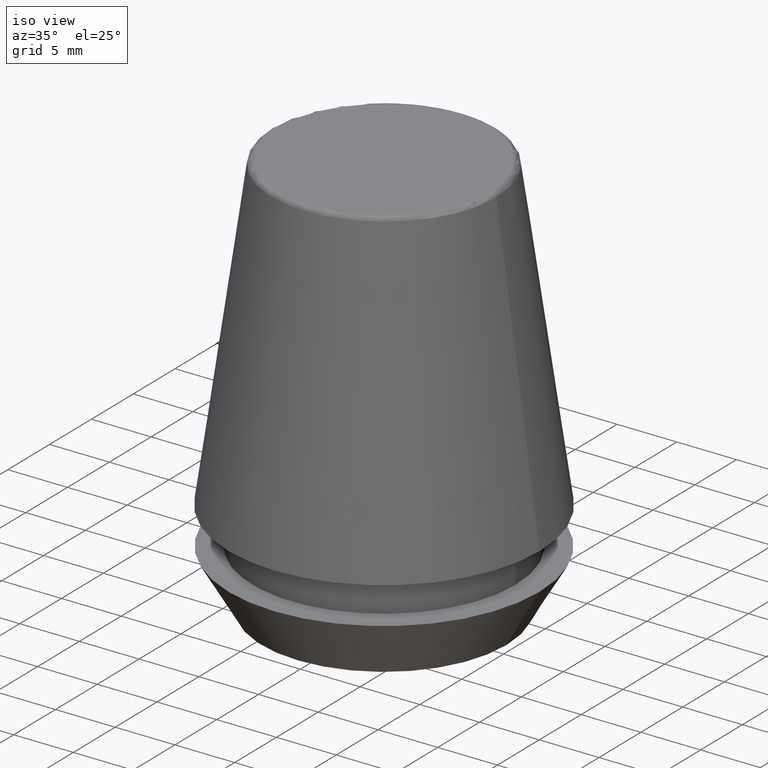
[diagram: clean part render]
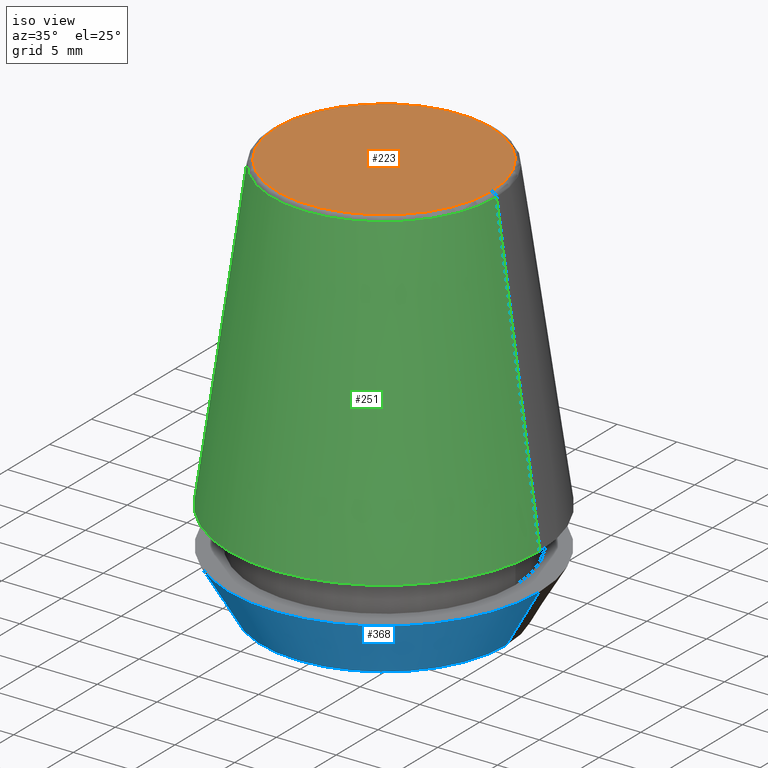
[diagram: same view with three faces highlighted in distinct colors, each labeled with its STEP entity id]
A machine part, iso view with three faces highlighted in distinct colors.
Their STEP definitions:

[orange] entity #223 — the highlighted planar face has unit normal (0, 0, -1).
#2 = DIRECTION ( 'NONE',  ( 0.0000000000000000000, 0.0000000000000000000, -1.000000000000000000 ) ) ;
#17 = FACE_OUTER_BOUND ( 'NONE', #290, .T. ) ;
#27 = ORIENTED_EDGE ( 'NONE', *, *, #113, .T. ) ;
#30 = DIRECTION ( 'NONE',  ( -1.000000000000000000, 0.0000000000000000000, -0.0000000000000000000 ) ) ;
#66 = VERTEX_POINT ( 'NONE', #247 ) ;
#106 = DIRECTION ( 'NONE',  ( 1.000000000000000000, 0.0000000000000000000, 0.0000000000000000000 ) ) ;
#113 = EDGE_CURVE ( 'NONE', #132, #66, #233, .T. ) ;
#132 = VERTEX_POINT ( 'NONE', #244 ) ;
#141 = DIRECTION ( 'NONE',  ( 1.000000000000000000, 0.0000000000000000000, 0.0000000000000000000 ) ) ;
#157 = CARTESIAN_POINT ( 'NONE',  ( 0.0000000000000000000, 9.012603057622234500, 34.00000000000000000 ) ) ;
#158 = PLANE ( 'NONE',  #332 ) ;
#163 = ORIENTED_EDGE ( 'NONE', *, *, #180, .T. ) ;
#178 = CIRCLE ( 'NONE', #362, 9.012603057622234500 ) ;
#180 = EDGE_CURVE ( 'NONE', #66, #132, #178, .T. ) ;
#223 = ADVANCED_FACE ( 'NONE', ( #17 ), #158, .F. ) ;
#233 = CIRCLE ( 'NONE', #377, 9.012603057622234500 ) ;
#244 = CARTESIAN_POINT ( 'NONE',  ( -9.012603057622234500, 1.127980121063915600E-015, 34.00000000000000000 ) ) ;
#247 = CARTESIAN_POINT ( 'NONE',  ( 9.012603057622234500, 0.0000000000000000000, 34.00000000000000000 ) ) ;
#267 = DIRECTION ( 'NONE',  ( -0.0000000000000000000, -0.0000000000000000000, 1.000000000000000000 ) ) ;
#290 = EDGE_LOOP ( 'NONE', ( #163, #27 ) ) ;
#291 = CARTESIAN_POINT ( 'NONE',  ( 0.0000000000000000000, 0.0000000000000000000, 34.00000000000000000 ) ) ;
#332 = AXIS2_PLACEMENT_3D ( 'NONE', #157, #2, #30 ) ;
#360 = CARTESIAN_POINT ( 'NONE',  ( 0.0000000000000000000, 0.0000000000000000000, 34.00000000000000000 ) ) ;
#362 = AXIS2_PLACEMENT_3D ( 'NONE', #360, #363, #106 ) ;
#363 = DIRECTION ( 'NONE',  ( -0.0000000000000000000, -0.0000000000000000000, 1.000000000000000000 ) ) ;
#377 = AXIS2_PLACEMENT_3D ( 'NONE', #291, #267, #141 ) ;

[blue] entity #368 — the highlighted conical surface has half-angle 30 deg.
#4 = CARTESIAN_POINT ( 'NONE',  ( 10.26217568973925200, 0.0000000000000000000, 0.0000000000000000000 ) ) ;
#8 = CARTESIAN_POINT ( 'NONE',  ( 0.0000000000000000000, 0.0000000000000000000, 0.0000000000000000000 ) ) ;
#20 = DIRECTION ( 'NONE',  ( 1.000000000000000000, 0.0000000000000000000, 0.0000000000000000000 ) ) ;
#33 = ORIENTED_EDGE ( 'NONE', *, *, #51, .F. ) ;
#35 = FACE_OUTER_BOUND ( 'NONE', #304, .T. ) ;
#40 = ORIENTED_EDGE ( 'NONE', *, *, #230, .T. ) ;
#44 = DIRECTION ( 'NONE',  ( 1.000000000000000000, 0.0000000000000000000, 0.0000000000000000000 ) ) ;
#51 = EDGE_CURVE ( 'NONE', #136, #69, #196, .T. ) ;
#69 = VERTEX_POINT ( 'NONE', #162 ) ;
#76 = DIRECTION ( 'NONE',  ( -0.0000000000000000000, -0.0000000000000000000, 1.000000000000000000 ) ) ;
#85 = EDGE_CURVE ( 'NONE', #185, #136, #348, .T. ) ;
#95 = EDGE_CURVE ( 'NONE', #185, #124, #165, .T. ) ;
#109 = DIRECTION ( 'NONE',  ( 1.000000000000000000, 0.0000000000000000000, 0.0000000000000000000 ) ) ;
#115 = DIRECTION ( 'NONE',  ( -0.0000000000000000000, -0.0000000000000000000, 1.000000000000000000 ) ) ;
#124 = VERTEX_POINT ( 'NONE', #287 ) ;
#136 = VERTEX_POINT ( 'NONE', #264 ) ;
#161 = CONICAL_SURFACE ( 'NONE', #382, 10.26217568973925200, 0.5235987755982940400 ) ;
#162 = CARTESIAN_POINT ( 'NONE',  ( 13.00000000000000000, 0.0000000000000000000, 4.742050807568884500 ) ) ;
#165 = CIRCLE ( 'NONE', #320, 10.26217568973925200 ) ;
#166 = LINE ( 'NONE', #4, #305 ) ;
#168 = CARTESIAN_POINT ( 'NONE',  ( 0.0000000000000000000, 0.0000000000000000000, 4.742050807568884500 ) ) ;
#177 = VECTOR ( 'NONE', #278, 1000.000000000000200 ) ;
#185 = VERTEX_POINT ( 'NONE', #263 ) ;
#196 = CIRCLE ( 'NONE', #329, 13.00000000000000000 ) ;
#210 = CARTESIAN_POINT ( 'NONE',  ( -10.26217568973925200, 1.256754061072695800E-015, 0.0000000000000000000 ) ) ;
#211 = ORIENTED_EDGE ( 'NONE', *, *, #95, .T. ) ;
#229 = ORIENTED_EDGE ( 'NONE', *, *, #85, .F. ) ;
#230 = EDGE_CURVE ( 'NONE', #124, #69, #166, .T. ) ;
#245 = CARTESIAN_POINT ( 'NONE',  ( 0.0000000000000000000, 0.0000000000000000000, 0.0000000000000000000 ) ) ;
#261 = DIRECTION ( 'NONE',  ( 0.4999999999999957800, 0.0000000000000000000, 0.8660254037844410400 ) ) ;
#263 = CARTESIAN_POINT ( 'NONE',  ( -10.26217568973925200, 1.424397449982127500E-015, 0.0000000000000000000 ) ) ;
#264 = CARTESIAN_POINT ( 'NONE',  ( -13.00000000000000000, 1.592040838891559100E-015, 4.742050807568884500 ) ) ;
#278 = DIRECTION ( 'NONE',  ( -0.4999999999999957800, 6.123233995736714300E-017, 0.8660254037844410400 ) ) ;
#287 = CARTESIAN_POINT ( 'NONE',  ( 10.26217568973925200, 0.0000000000000000000, 0.0000000000000000000 ) ) ;
#304 = EDGE_LOOP ( 'NONE', ( #229, #211, #40, #33 ) ) ;
#305 = VECTOR ( 'NONE', #261, 1000.000000000000200 ) ;
#320 = AXIS2_PLACEMENT_3D ( 'NONE', #8, #76, #109 ) ;
#324 = DIRECTION ( 'NONE',  ( -0.0000000000000000000, -0.0000000000000000000, 1.000000000000000000 ) ) ;
#329 = AXIS2_PLACEMENT_3D ( 'NONE', #168, #324, #20 ) ;
#348 = LINE ( 'NONE', #210, #177 ) ;
#368 = ADVANCED_FACE ( 'NONE', ( #35 ), #161, .T. ) ;
#382 = AXIS2_PLACEMENT_3D ( 'NONE', #245, #115, #44 ) ;

[green] entity #251 — the highlighted conical surface has half-angle 8 deg.
#7 = DIRECTION ( 'NONE',  ( 0.1391731009600587800, 1.704378926181474000E-017, -0.9902680687415712500 ) ) ;
#28 = CARTESIAN_POINT ( 'NONE',  ( -13.03657776635556700, 0.0000000000000000000, 7.842050807568876200 ) ) ;
#45 = DIRECTION ( 'NONE',  ( -0.1391731009600587800, 0.0000000000000000000, -0.9902680687415712500 ) ) ;
#53 = EDGE_CURVE ( 'NONE', #81, #198, #58, .T. ) ;
#58 = LINE ( 'NONE', #387, #181 ) ;
#60 = DIRECTION ( 'NONE',  ( -0.0000000000000000000, -0.0000000000000000000, 1.000000000000000000 ) ) ;
#62 = CIRCLE ( 'NONE', #265, 13.03657776635556700 ) ;
#81 = VERTEX_POINT ( 'NONE', #172 ) ;
#93 = ORIENTED_EDGE ( 'NONE', *, *, #129, .F. ) ;
#114 = DIRECTION ( 'NONE',  ( 0.0000000000000000000, 0.0000000000000000000, -1.000000000000000000 ) ) ;
#120 = CONICAL_SURFACE ( 'NONE', #319, 13.03657776635556700, 0.1396263401595396500 ) ;
#129 = EDGE_CURVE ( 'NONE', #269, #144, #344, .T. ) ;
#138 = EDGE_LOOP ( 'NONE', ( #93, #369, #379, #355 ) ) ;
#144 = VERTEX_POINT ( 'NONE', #240 ) ;
#155 = CARTESIAN_POINT ( 'NONE',  ( 0.0000000000000000000, 0.0000000000000000000, 7.842050807568876200 ) ) ;
#172 = CARTESIAN_POINT ( 'NONE',  ( -9.408710285118862900, 0.0000000000000000000, 33.65566924038402900 ) ) ;
#174 = CARTESIAN_POINT ( 'NONE',  ( 0.0000000000000000000, 0.0000000000000000000, 33.65566924038402900 ) ) ;
#181 = VECTOR ( 'NONE', #45, 1000.000000000000000 ) ;
#182 = FACE_OUTER_BOUND ( 'NONE', #138, .T. ) ;
#191 = VECTOR ( 'NONE', #7, 1000.000000000000000 ) ;
#194 = DIRECTION ( 'NONE',  ( -1.000000000000000000, 0.0000000000000000000, 0.0000000000000000000 ) ) ;
#198 = VERTEX_POINT ( 'NONE', #28 ) ;
#201 = DIRECTION ( 'NONE',  ( 1.000000000000000000, 0.0000000000000000000, 0.0000000000000000000 ) ) ;
#228 = CARTESIAN_POINT ( 'NONE',  ( 9.408710285118862900, 1.374377508408924700E-015, 33.65566924038402900 ) ) ;
#237 = EDGE_CURVE ( 'NONE', #81, #269, #300, .T. ) ;
#240 = CARTESIAN_POINT ( 'NONE',  ( 13.03657776635556700, 1.596520323340289600E-015, 7.842050807568876200 ) ) ;
#242 = EDGE_CURVE ( 'NONE', #198, #144, #62, .T. ) ;
#251 = ADVANCED_FACE ( 'NONE', ( #182 ), #120, .T. ) ;
#253 = DIRECTION ( 'NONE',  ( 1.000000000000000000, 0.0000000000000000000, 0.0000000000000000000 ) ) ;
#265 = AXIS2_PLACEMENT_3D ( 'NONE', #155, #60, #253 ) ;
#269 = VERTEX_POINT ( 'NONE', #228 ) ;
#294 = CARTESIAN_POINT ( 'NONE',  ( 0.0000000000000000000, 0.0000000000000000000, 7.842050807568876200 ) ) ;
#300 = CIRCLE ( 'NONE', #312, 9.408710285118862900 ) ;
#310 = DIRECTION ( 'NONE',  ( -0.0000000000000000000, -0.0000000000000000000, 1.000000000000000000 ) ) ;
#312 = AXIS2_PLACEMENT_3D ( 'NONE', #174, #310, #201 ) ;
#318 = CARTESIAN_POINT ( 'NONE',  ( 13.03657776635556700, 1.596520323340289600E-015, 7.842050807568876200 ) ) ;
#319 = AXIS2_PLACEMENT_3D ( 'NONE', #294, #114, #194 ) ;
#344 = LINE ( 'NONE', #318, #191 ) ;
#355 = ORIENTED_EDGE ( 'NONE', *, *, #242, .T. ) ;
#369 = ORIENTED_EDGE ( 'NONE', *, *, #237, .F. ) ;
#379 = ORIENTED_EDGE ( 'NONE', *, *, #53, .T. ) ;
#387 = CARTESIAN_POINT ( 'NONE',  ( -13.03657776635556700, 0.0000000000000000000, 7.842050807568876200 ) ) ;